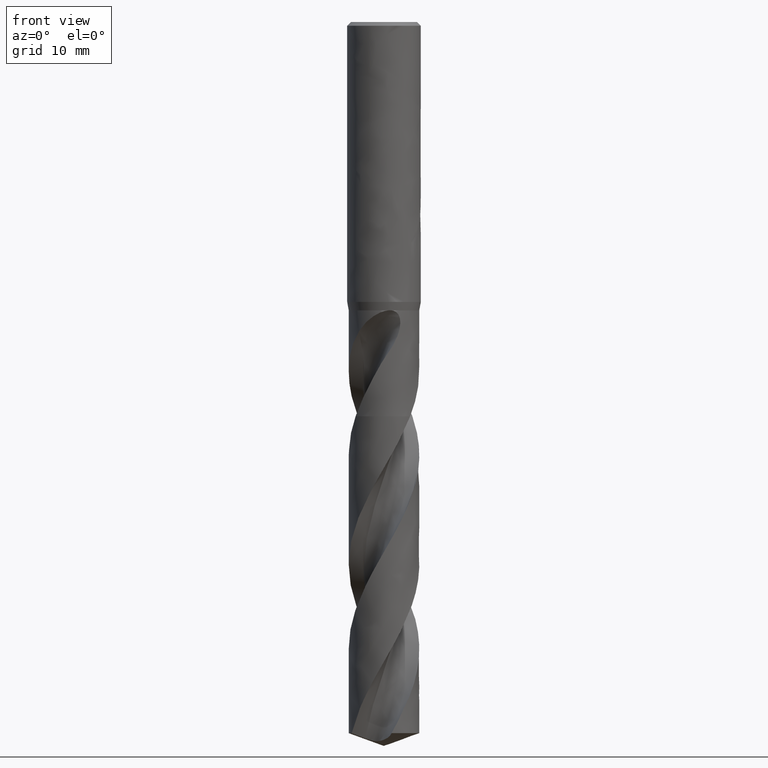
[diagram: clean part render]
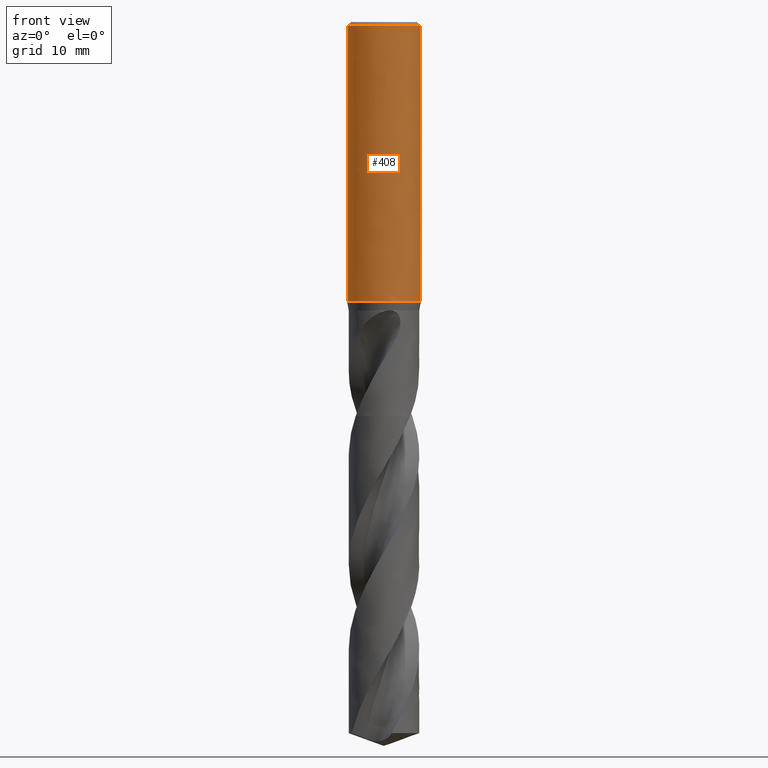
[diagram: same view with one face highlighted and labeled with its STEP entity id]
A machine part, front view. The second image highlights one B-rep face of the part: STEP entity #408.
In plain terms, the highlighted face is a freeform B-spline surface patch.
Its self-contained STEP definition (entity closure, byte-faithful):
#300 = VERTEX_POINT('', #301);
#301 = CARTESIAN_POINT('', (-6., 3.16007860051983E-15, -45.608));
#307 = EDGE_CURVE('', #300, #300, #308, .T.);
#308 = CIRCLE('', #309, 6.);
#309 = AXIS2_PLACEMENT_3D('', #310, #311, #312);
#310 = CARTESIAN_POINT('', (1.71002610419105E-31, 2.79268456077562E-15, -45.608));
#311 = DIRECTION('', (3.74939945665464E-33, 6.12323399573677E-17, -1.));
#312 = DIRECTION('', (-1., 6.12323399573677E-17, 0.));
#357 = VERTEX_POINT('', #358);
#358 = CARTESIAN_POINT('', (-6., 4.04133443718627E-16, -0.600000000000001));
#374 = EDGE_CURVE('', #357, #357, #375, .T.);
#375 = CIRCLE('', #376, 5.99999999999998);
#376 = AXIS2_PLACEMENT_3D('', #377, #378, #379);
#377 = CARTESIAN_POINT('', (2.24963967399277E-33, 3.67394039744209E-17, -0.600000000000001));
#378 = DIRECTION('', (3.74939945665464E-33, 6.12323399573677E-17, -1.));
#379 = DIRECTION('', (-1., 6.12323399573677E-17, 0.));
#408 = ADVANCED_FACE('', (#409, #420), #615, .T.);
#409 = FACE_OUTER_BOUND('', #410, .T.);
#410 = EDGE_LOOP('', (#411, #417, #418, #419));
#411 = ORIENTED_EDGE('', *, *, #412, .T.);
#412 = EDGE_CURVE('', #300, #357, #413, .T.);
#413 = LINE('', #414, #415);
#414 = CARTESIAN_POINT('', (-6., 3.16007860051983E-15, -45.608));
#415 = VECTOR('', #416, 45.008);
#416 = DIRECTION('', (0., -2.7559451568012E-15, 45.008));
#417 = ORIENTED_EDGE('', *, *, #374, .T.);
#418 = ORIENTED_EDGE('', *, *, #412, .F.);
#419 = ORIENTED_EDGE('', *, *, #307, .F.);
#420 = FACE_BOUND('', #421, .T.);
#421 = EDGE_LOOP('', (#422, #514, #522, #609));
#422 = ORIENTED_EDGE('', *, *, #423, .F.);
#423 = EDGE_CURVE('', #424, #426, #428, .T.);
#424 = VERTEX_POINT('', #425);
#425 = CARTESIAN_POINT('', (-4.07921561087423, 4.4, -18.5));
#426 = VERTEX_POINT('', #427);
#427 = CARTESIAN_POINT('', (4.07921561087423, 4.4, -18.5));
#428 = B_SPLINE_CURVE_WITH_KNOTS('', 3, (#429, #430, #431, #432, #433, #434, #435, #436, #437, #438, #439, #440, #441, #442, #443, #444, #445, #446, #447, #448, #449, #450, #451, #452, #453, #454, #455, #456, #457, #458, #459, #460, #461, #462, #463, #464, #465, #466, #467, #468, #469, #470, #471, #472, #473, #474, #475, #476, #477, #478, #479, #480, #481, #482, #483, #484, #485, #486, #487, #488, #489, #490, #491, #492, #493, #494, #495, #496, #497, #498, #499, #500, #501, #502, #503, #504, #505, #506, #507, #508, #509, #510, #511, #512, #513), .UNSPECIFIED., .F., .U., (4, 3, 3, 3, 3, 3, 3, 3, 3, 3, 3, 3, 3, 3, 3, 3, 3, 3, 3, 3, 3, 3, 3, 3, 3, 3, 3, 3, 4), (0., 0.252528164981991, 0.696302962445129, 1.1402945821051, 1.58454104344382, 2.02908503294032, 2.47397183993455, 2.77031065522297, 3.06676568600971, 3.36334316241505, 3.66004733001567, 3.95687982725978, 4.25383918654578, 4.55092056662182, 4.84668162437949, 5.14244268213716, 5.4395240622132, 5.7364834214992, 6.03331591874331, 6.33002008634393, 6.62659756274926, 6.92305259353601, 7.21939140882443, 7.66427821581866, 8.10882220531516, 8.55306866665387, 8.99706028631384, 9.44083508377698, 9.69336324875898), .UNSPECIFIED.);
#429 = CARTESIAN_POINT('', (-4.07921561087423, 4.4, -18.5));
#430 = CARTESIAN_POINT('', (-4.02845131220746, 4.44706329990831, -18.4521080380756));
#431 = CARTESIAN_POINT('', (-3.97655807735762, 4.4935394565002, -18.4048135575308));
#432 = CARTESIAN_POINT('', (-3.92353945924903, 4.53936538645172, -18.3581807524223));
#433 = CARTESIAN_POINT('', (-3.8303683608308, 4.61989657307895, -18.2762316215456));
#434 = CARTESIAN_POINT('', (-3.73364869199152, 4.69848132293275, -18.1962631991195));
#435 = CARTESIAN_POINT('', (-3.6334318436559, 4.77474324309775, -18.1186585053574));
#436 = CARTESIAN_POINT('', (-3.53316603076136, 4.85104242377677, -18.0410158950207));
#437 = CARTESIAN_POINT('', (-3.42929151463678, 4.92509751242185, -17.9656568893282));
#438 = CARTESIAN_POINT('', (-3.32191613869429, 4.9964860819863, -17.8930113531657));
#439 = CARTESIAN_POINT('', (-3.21447913158614, 5.06791562706045, -17.8203241200216));
#440 = CARTESIAN_POINT('', (-3.10340403823706, 5.13676248497671, -17.7502650484231));
#441 = CARTESIAN_POINT('', (-2.98887732179034, 5.20255825102304, -17.6833107904681));
#442 = CARTESIAN_POINT('', (-2.8742739025988, 5.26839808290842, -17.6163116907895));
#443 = CARTESIAN_POINT('', (-2.75605059652716, 5.33127457957415, -17.5523281029383));
#444 = CARTESIAN_POINT('', (-2.63449928745334, 5.39067838999958, -17.4918783462787));
#445 = CARTESIAN_POINT('', (-2.51285424206409, 5.45012801066231, -17.4313819727829));
#446 = CARTESIAN_POINT('', (-2.38767641856268, 5.50619443410249, -17.3743283657927));
#447 = CARTESIAN_POINT('', (-2.2593928894653, 5.55834001937932, -17.3212646327041));
#448 = CARTESIAN_POINT('', (-2.17394331344713, 5.59307416011021, -17.2859189143078));
#449 = CARTESIAN_POINT('', (-2.08703253413476, 5.62610405559013, -17.2523074484784));
#450 = CARTESIAN_POINT('', (-1.99882607577489, 5.65726915735873, -17.2205936105159));
#451 = CARTESIAN_POINT('', (-1.91058502539741, 5.68844648117739, -17.188867335305));
#452 = CARTESIAN_POINT('', (-1.82096798723844, 5.71778510232651, -17.159012137524));
#453 = CARTESIAN_POINT('', (-1.73017554338987, 5.74512772608718, -17.1311880814419));
#454 = CARTESIAN_POINT('', (-1.63934559929405, 5.77248164324527, -17.1033525331151));
#455 = CARTESIAN_POINT('', (-1.54725106907462, 5.79786399616015, -17.0775232631379));
#456 = CARTESIAN_POINT('', (-1.45412928109495, 5.82112601082147, -17.0538516650431));
#457 = CARTESIAN_POINT('', (-1.36096771359201, 5.84439796248974, -17.0301699549766));
#458 = CARTESIAN_POINT('', (-1.26668101162223, 5.86557151484437, -17.008623591565));
#459 = CARTESIAN_POINT('', (-1.1715431013361, 5.88451244893847, -16.9893491570011));
#460 = CARTESIAN_POINT('', (-1.07636404227133, 5.90346157531156, -16.9700663859134));
#461 = CARTESIAN_POINT('', (-0.980227817186137, 5.9201966535508, -16.9530366465752));
#462 = CARTESIAN_POINT('', (-0.883442451457368, 5.93460440425164, -16.9383752129459));
#463 = CARTESIAN_POINT('', (-0.786615721022124, 5.94901831262286, -16.9237075132258));
#464 = CARTESIAN_POINT('', (-0.689026914371761, 5.96111925406702, -16.9113935057503));
#465 = CARTESIAN_POINT('', (-0.591013008611255, 5.97082101755297, -16.9015209195021));
#466 = CARTESIAN_POINT('', (-0.492958828874388, 5.98052676749972, -16.8916442766019));
#467 = CARTESIAN_POINT('', (-0.39436122189041, 5.9878427681628, -16.8841994602402));
#468 = CARTESIAN_POINT('', (-0.295578376007083, 5.99271502940337, -16.8792414111813));
#469 = CARTESIAN_POINT('', (-0.197234551903102, 5.99756563679524, -16.8743053972389));
#470 = CARTESIAN_POINT('', (-0.0985870192525581, 6., -16.8718281712446));
#471 = CARTESIAN_POINT('', (-7.04481399828022E-16, 6., -16.8718281712446));
#472 = CARTESIAN_POINT('', (0.0985870192525561, 6., -16.8718281712446));
#473 = CARTESIAN_POINT('', (0.197234551903099, 5.99756563679524, -16.8743053972389));
#474 = CARTESIAN_POINT('', (0.29557837600708, 5.99271502940337, -16.8792414111813));
#475 = CARTESIAN_POINT('', (0.394361221890407, 5.9878427681628, -16.8841994602402));
#476 = CARTESIAN_POINT('', (0.492958828874384, 5.98052676749972, -16.8916442766019));
#477 = CARTESIAN_POINT('', (0.591013008611251, 5.97082101755297, -16.9015209195021));
#478 = CARTESIAN_POINT('', (0.689026914371758, 5.96111925406702, -16.9113935057503));
#479 = CARTESIAN_POINT('', (0.786615721022121, 5.94901831262286, -16.9237075132258));
#480 = CARTESIAN_POINT('', (0.883442451457365, 5.93460440425164, -16.9383752129459));
#481 = CARTESIAN_POINT('', (0.980227817186133, 5.9201966535508, -16.9530366465752));
#482 = CARTESIAN_POINT('', (1.07636404227133, 5.90346157531157, -16.9700663859134));
#483 = CARTESIAN_POINT('', (1.17154310133609, 5.88451244893847, -16.9893491570011));
#484 = CARTESIAN_POINT('', (1.26668101162223, 5.86557151484437, -17.008623591565));
#485 = CARTESIAN_POINT('', (1.360967713592, 5.84439796248974, -17.0301699549766));
#486 = CARTESIAN_POINT('', (1.45412928109494, 5.82112601082147, -17.0538516650431));
#487 = CARTESIAN_POINT('', (1.54725106907461, 5.79786399616015, -17.0775232631379));
#488 = CARTESIAN_POINT('', (1.63934559929404, 5.77248164324527, -17.1033525331151));
#489 = CARTESIAN_POINT('', (1.73017554338986, 5.74512772608718, -17.1311880814419));
#490 = CARTESIAN_POINT('', (1.82096798723843, 5.71778510232651, -17.159012137524));
#491 = CARTESIAN_POINT('', (1.91058502539741, 5.68844648117739, -17.188867335305));
#492 = CARTESIAN_POINT('', (1.99882607577488, 5.65726915735874, -17.2205936105159));
#493 = CARTESIAN_POINT('', (2.08703253413476, 5.62610405559013, -17.2523074484784));
#494 = CARTESIAN_POINT('', (2.17394331344712, 5.59307416011022, -17.2859189143078));
#495 = CARTESIAN_POINT('', (2.25939288946529, 5.55834001937932, -17.3212646327041));
#496 = CARTESIAN_POINT('', (2.38767641856268, 5.50619443410249, -17.3743283657927));
#497 = CARTESIAN_POINT('', (2.51285424206408, 5.45012801066231, -17.4313819727829));
#498 = CARTESIAN_POINT('', (2.63449928745334, 5.39067838999959, -17.4918783462786));
#499 = CARTESIAN_POINT('', (2.75605059652716, 5.33127457957415, -17.5523281029383));
#500 = CARTESIAN_POINT('', (2.87427390259879, 5.26839808290842, -17.6163116907895));
#501 = CARTESIAN_POINT('', (2.98887732179034, 5.20255825102305, -17.6833107904681));
#502 = CARTESIAN_POINT('', (3.10340403823706, 5.13676248497672, -17.7502650484231));
#503 = CARTESIAN_POINT('', (3.21447913158613, 5.06791562706045, -17.8203241200216));
#504 = CARTESIAN_POINT('', (3.32191613869428, 4.99648608198631, -17.8930113531657));
#505 = CARTESIAN_POINT('', (3.42929151463677, 4.92509751242185, -17.9656568893282));
#506 = CARTESIAN_POINT('', (3.53316603076135, 4.85104242377677, -18.0410158950207));
#507 = CARTESIAN_POINT('', (3.63343184365589, 4.77474324309775, -18.1186585053574));
#508 = CARTESIAN_POINT('', (3.73364869199151, 4.69848132293276, -18.1962631991195));
#509 = CARTESIAN_POINT('', (3.83036836083079, 4.61989657307895, -18.2762316215456));
#510 = CARTESIAN_POINT('', (3.92353945924903, 4.53936538645172, -18.3581807524223));
#511 = CARTESIAN_POINT('', (3.97655807735762, 4.4935394565002, -18.4048135575308));
#512 = CARTESIAN_POINT('', (4.02845131220746, 4.44706329990831, -18.4521080380756));
#513 = CARTESIAN_POINT('', (4.07921561087423, 4.4, -18.5));
#514 = ORIENTED_EDGE('', *, *, #515, .T.);
#515 = EDGE_CURVE('', #424, #516, #518, .T.);
#516 = VERTEX_POINT('', #517);
#517 = CARTESIAN_POINT('', (-4.07921561087423, 4.4, -26.5));
#518 = LINE('', #519, #520);
#519 = CARTESIAN_POINT('', (-4.07921561087423, 4.4, -18.5));
#520 = VECTOR('', #521, 8.);
#521 = DIRECTION('', (0., 0., -8.));
#522 = ORIENTED_EDGE('', *, *, #523, .T.);
#523 = EDGE_CURVE('', #516, #524, #526, .T.);
#524 = VERTEX_POINT('', #525);
#525 = CARTESIAN_POINT('', (4.07921561087423, 4.4, -26.5));
#526 = B_SPLINE_CURVE_WITH_KNOTS('', 3, (#527, #528, #529, #530, #531, #532, #533, #534, #535, #536, #537, #538, #539, #540, #541, #542, #543, #544, #545, #546, #547, #548, #549, #550, #551, #552, #553, #554, #555, #556, #557, #558, #559, #560, #561, #562, #563, #564, #565, #566, #567, #568, #569, #570, #571, #572, #573, #574, #575, #576, #577, #578, #579, #580, #581, #582, #583, #584, #585, #586, #587, #588, #589, #590, #591, #592, #593, #594, #595, #596, #597, #598, #599, #600, #601, #602, #603, #604, #605, #606, #607, #608), .UNSPECIFIED., .F., .U., (4, 3, 3, 3, 3, 3, 3, 3, 3, 3, 3, 3, 3, 3, 3, 3, 3, 3, 3, 3, 3, 3, 3, 3, 3, 3, 3, 4), (0., 0.443342399663826, 0.886545636833211, 1.32958786504548, 1.77244318478925, 2.21508166617877, 2.65746991921297, 3.0995725400833, 3.5413547763039, 3.83602657676747, 4.13058610128575, 4.42503187144969, 4.62151501666331, 4.84649677051964, 5.14225782827731, 5.43933920835335, 5.73629856763935, 6.03313106488346, 6.32983523248408, 6.62641270888942, 6.92286773967616, 7.21920655496458, 7.66409336195881, 8.10863735145531, 8.55288381279403, 8.996875432454, 9.44065022991714, 9.69317839489914), .UNSPECIFIED.);
#527 = CARTESIAN_POINT('', (-4.07921561087423, 4.4, -26.5));
#528 = CARTESIAN_POINT('', (-3.99009301344126, 4.48262506607505, -26.5840798780828));
#529 = CARTESIAN_POINT('', (-3.89746999004795, 4.56345861274838, -26.6663366927777));
#530 = CARTESIAN_POINT('', (-3.80137376549427, 4.64215009397717, -26.7464137258401));
#531 = CARTESIAN_POINT('', (-3.70530770496353, 4.72081687442654, -26.8264656232067));
#532 = CARTESIAN_POINT('', (-3.60567507499127, 4.79742012425749, -26.9044176565604));
#533 = CARTESIAN_POINT('', (-3.50254877718792, 4.87156566859361, -26.9798687106327));
#534 = CARTESIAN_POINT('', (-3.39945994359121, 4.94568427698756, -27.0552923544912));
#535 = CARTESIAN_POINT('', (-3.29276254731489, 5.01742999477435, -27.1283013273252));
#536 = CARTESIAN_POINT('', (-3.18259405082664, 5.08636364288317, -27.1984487172653));
#537 = CARTESIAN_POINT('', (-3.07247203167993, 5.15526820960477, -27.2685665137707));
#538 = CARTESIAN_POINT('', (-2.95873778715688, 5.22145138140552, -27.3359149986855));
#539 = CARTESIAN_POINT('', (-2.84161670673264, 5.28443133099668, -27.4000038609985));
#540 = CARTESIAN_POINT('', (-2.72455297312393, 5.34738044327368, -27.4640613430326));
#541 = CARTESIAN_POINT('', (-2.60392993007725, 5.40722166596681, -27.5249562136497));
#542 = CARTESIAN_POINT('', (-2.48008787968619, 5.4634388537839, -27.5821632395845));
#543 = CARTESIAN_POINT('', (-2.35631583855527, 5.51962426141233, -27.6393379257643));
#544 = CARTESIAN_POINT('', (-2.22911594889545, 5.57228333564817, -27.6929241890138));
#545 = CARTESIAN_POINT('', (-2.09897135694727, 5.62088242562654, -27.7423789822675));
#546 = CARTESIAN_POINT('', (-1.96891079408702, 5.66945013714235, -27.7918018445657));
#547 = CARTESIAN_POINT('', (-1.83565628537042, 5.71405431098098, -27.8371913816213));
#548 = CARTESIAN_POINT('', (-1.6998574866198, 5.75417105456425, -27.8780144764737));
#549 = CARTESIAN_POINT('', (-1.56415709907174, 5.79425872618948, -27.9188079874865));
#550 = CARTESIAN_POINT('', (-1.42562096784116, 5.82994915689483, -27.9551268336306));
#551 = CARTESIAN_POINT('', (-1.28507687616643, 5.86076594161075, -27.9864862215852));
#552 = CARTESIAN_POINT('', (-1.19133299707205, 5.88132094969443, -28.0074031497737));
#553 = CARTESIAN_POINT('', (-1.09657649444595, 5.89973707876045, -28.026143538861));
#554 = CARTESIAN_POINT('', (-1.0010958872433, 5.91589443994267, -28.042585389051));
#555 = CARTESIAN_POINT('', (-0.905651660092686, 5.93204564484188, -28.0590209745618));
#556 = CARTESIAN_POINT('', (-0.809376785197186, 5.94595753641382, -28.0731778182757));
#557 = CARTESIAN_POINT('', (-0.712589485964345, 5.95753440816695, -28.0849585285592));
#558 = CARTESIAN_POINT('', (-0.615839564496659, 5.96910680911041, -28.0967346893137));
#559 = CARTESIAN_POINT('', (-0.518464684260805, 5.97835919784588, -28.1061499884935));
#560 = CARTESIAN_POINT('', (-0.420806179111676, 5.98522532237688, -28.1131370075773));
#561 = CARTESIAN_POINT('', (-0.355638830170385, 5.98980707521554, -28.1177994331387));
#562 = CARTESIAN_POINT('', (-0.290302106735288, 5.99333029033027, -28.1213846828865));
#563 = CARTESIAN_POINT('', (-0.224901311003016, 5.99578346843089, -28.123881055058));
#564 = CARTESIAN_POINT('', (-0.150014553100963, 5.99859246413889, -28.1267395098573));
#565 = CARTESIAN_POINT('', (-0.0749939179521118, 6., -28.1281718287554));
#566 = CARTESIAN_POINT('', (-1.50412292274268E-15, 6., -28.1281718287554));
#567 = CARTESIAN_POINT('', (0.0985870192525556, 6., -28.1281718287554));
#568 = CARTESIAN_POINT('', (0.197234551903099, 5.99756563679524, -28.1256946027611));
#569 = CARTESIAN_POINT('', (0.29557837600708, 5.99271502940337, -28.1207585888187));
#570 = CARTESIAN_POINT('', (0.394361221890407, 5.9878427681628, -28.1158005397598));
#571 = CARTESIAN_POINT('', (0.492958828874384, 5.98052676749973, -28.1083557233981));
#572 = CARTESIAN_POINT('', (0.591013008611251, 5.97082101755297, -28.0984790804979));
#573 = CARTESIAN_POINT('', (0.689026914371758, 5.96111925406702, -28.0886064942497));
#574 = CARTESIAN_POINT('', (0.786615721022121, 5.94901831262286, -28.0762924867742));
#575 = CARTESIAN_POINT('', (0.883442451457365, 5.93460440425165, -28.0616247870541));
#576 = CARTESIAN_POINT('', (0.980227817186133, 5.9201966535508, -28.0469633534248));
#577 = CARTESIAN_POINT('', (1.07636404227133, 5.90346157531157, -28.0299336140866));
#578 = CARTESIAN_POINT('', (1.17154310133609, 5.88451244893847, -28.0106508429989));
#579 = CARTESIAN_POINT('', (1.26668101162223, 5.86557151484437, -27.991376408435));
#580 = CARTESIAN_POINT('', (1.360967713592, 5.84439796248974, -27.9698300450234));
#581 = CARTESIAN_POINT('', (1.45412928109495, 5.82112601082147, -27.9461483349569));
#582 = CARTESIAN_POINT('', (1.54725106907462, 5.79786399616015, -27.9224767368621));
#583 = CARTESIAN_POINT('', (1.63934559929405, 5.77248164324527, -27.8966474668849));
#584 = CARTESIAN_POINT('', (1.73017554338986, 5.74512772608718, -27.8688119185581));
#585 = CARTESIAN_POINT('', (1.82096798723844, 5.71778510232651, -27.840987862476));
#586 = CARTESIAN_POINT('', (1.91058502539741, 5.68844648117739, -27.811132664695));
#587 = CARTESIAN_POINT('', (1.99882607577488, 5.65726915735874, -27.7794063894841));
#588 = CARTESIAN_POINT('', (2.08703253413476, 5.62610405559013, -27.7476925515216));
#589 = CARTESIAN_POINT('', (2.17394331344712, 5.59307416011022, -27.7140810856922));
#590 = CARTESIAN_POINT('', (2.2593928894653, 5.55834001937932, -27.6787353672959));
#591 = CARTESIAN_POINT('', (2.38767641856268, 5.5061944341025, -27.6256716342073));
#592 = CARTESIAN_POINT('', (2.51285424206408, 5.45012801066231, -27.5686180272171));
#593 = CARTESIAN_POINT('', (2.63449928745334, 5.39067838999959, -27.5081216537214));
#594 = CARTESIAN_POINT('', (2.75605059652716, 5.33127457957415, -27.4476718970617));
#595 = CARTESIAN_POINT('', (2.8742739025988, 5.26839808290842, -27.3836883092105));
#596 = CARTESIAN_POINT('', (2.98887732179034, 5.20255825102305, -27.3166892095319));
#597 = CARTESIAN_POINT('', (3.10340403823706, 5.13676248497672, -27.2497349515769));
#598 = CARTESIAN_POINT('', (3.21447913158614, 5.06791562706045, -27.1796758799784));
#599 = CARTESIAN_POINT('', (3.32191613869428, 4.99648608198631, -27.1069886468343));
#600 = CARTESIAN_POINT('', (3.42929151463677, 4.92509751242185, -27.0343431106718));
#601 = CARTESIAN_POINT('', (3.53316603076136, 4.85104242377677, -26.9589841049793));
#602 = CARTESIAN_POINT('', (3.63343184365589, 4.77474324309775, -26.8813414946426));
#603 = CARTESIAN_POINT('', (3.73364869199151, 4.69848132293276, -26.8037368008805));
#604 = CARTESIAN_POINT('', (3.83036836083079, 4.61989657307895, -26.7237683784544));
#605 = CARTESIAN_POINT('', (3.92353945924902, 4.53936538645173, -26.6418192475777));
#606 = CARTESIAN_POINT('', (3.97655807735761, 4.4935394565002, -26.5951864424692));
#607 = CARTESIAN_POINT('', (4.02845131220746, 4.44706329990831, -26.5478919619244));
#608 = CARTESIAN_POINT('', (4.07921561087423, 4.4, -26.5));
#609 = ORIENTED_EDGE('', *, *, #610, .F.);
#610 = EDGE_CURVE('', #426, #524, #611, .T.);
#611 = LINE('', #612, #613);
#612 = CARTESIAN_POINT('', (4.07921561087423, 4.4, -18.5));
#613 = VECTOR('', #614, 8.);
#614 = DIRECTION('', (0., 0., -8.));
#615 = (
   BOUNDED_SURFACE ()
   B_SPLINE_SURFACE (1, 2, ((#616, #617, #618, #619, #620, #621, #622, #623, #624), (#625, #626, #627, #628, #629, #630, #631, #632, #633)), .UNSPECIFIED., .F., .T., .U.)
   B_SPLINE_SURFACE_WITH_KNOTS ((2, 2), (3, 2, 2, 2, 3), (0., 1.), (0., 9.42477796076938, 18.8495559215388, 28.2743338823081, 37.6991118430775), .UNSPECIFIED.)
   GEOMETRIC_REPRESENTATION_ITEM ()
   RATIONAL_B_SPLINE_SURFACE (((1., 0.707106781186548, 1., 0.707106781186548, 1., 0.707106781186548, 1., 0.707106781186548, 1.), (1., 0.707106781186548, 1., 0.707106781186548, 1., 0.707106781186548, 1., 0.707106781186548, 1.)))
   REPRESENTATION_ITEM ('')
   SURFACE ()
);
#616 = CARTESIAN_POINT('', (-6., 3.16007860051983E-15, -45.608));
#617 = CARTESIAN_POINT('', (-6., 6., -45.608));
#618 = CARTESIAN_POINT('', (1.4791141972894E-31, 6., -45.608));
#619 = CARTESIAN_POINT('', (6., 6., -45.608));
#620 = CARTESIAN_POINT('', (6., 3.16007860051983E-15, -45.608));
#621 = CARTESIAN_POINT('', (6., -6., -45.608));
#622 = CARTESIAN_POINT('', (7.34788079488412E-16, -6., -45.608));
#623 = CARTESIAN_POINT('', (-6., -6., -45.608));
#624 = CARTESIAN_POINT('', (-6., 3.16007860051983E-15, -45.608));
#625 = CARTESIAN_POINT('', (-6., 4.04133443718627E-16, -0.600000000000001));
#626 = CARTESIAN_POINT('', (-6., 6., -0.600000000000001));
#627 = CARTESIAN_POINT('', (0., 6., -0.600000000000001));
#628 = CARTESIAN_POINT('', (6., 6., -0.600000000000001));
#629 = CARTESIAN_POINT('', (6., 4.04133443718627E-16, -0.600000000000001));
#630 = CARTESIAN_POINT('', (6., -6., -0.600000000000002));
#631 = CARTESIAN_POINT('', (7.34788079488412E-16, -6., -0.600000000000002));
#632 = CARTESIAN_POINT('', (-6., -6., -0.600000000000002));
#633 = CARTESIAN_POINT('', (-6., 4.04133443718627E-16, -0.600000000000001));